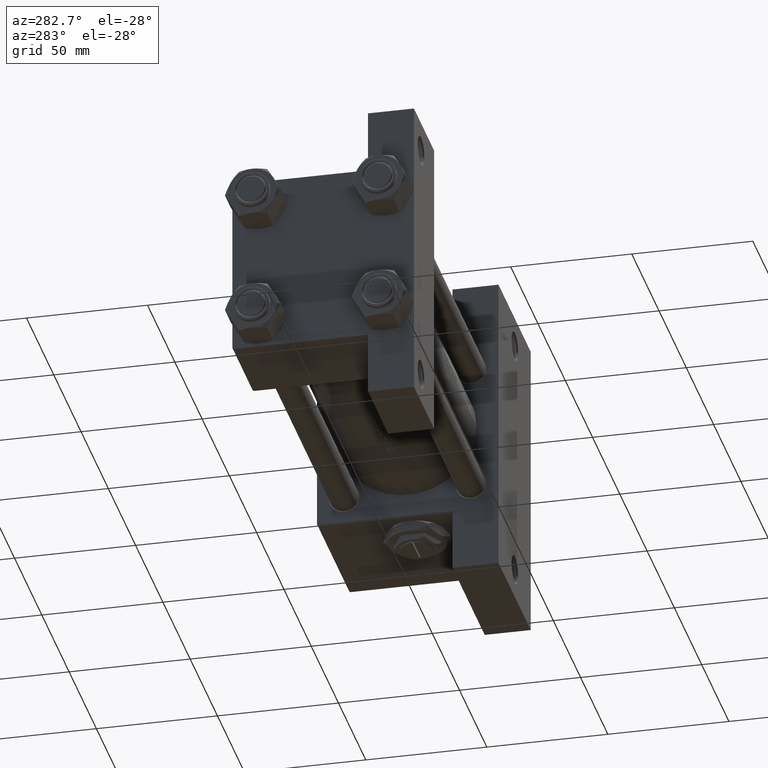
[diagram: clean part render]
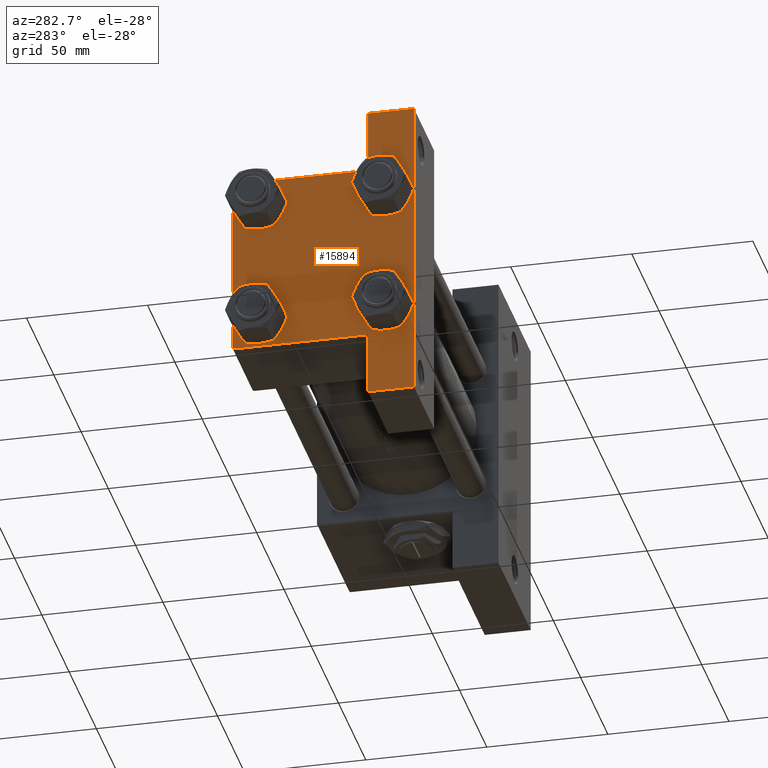
[diagram: same view with one face highlighted and labeled with its STEP entity id]
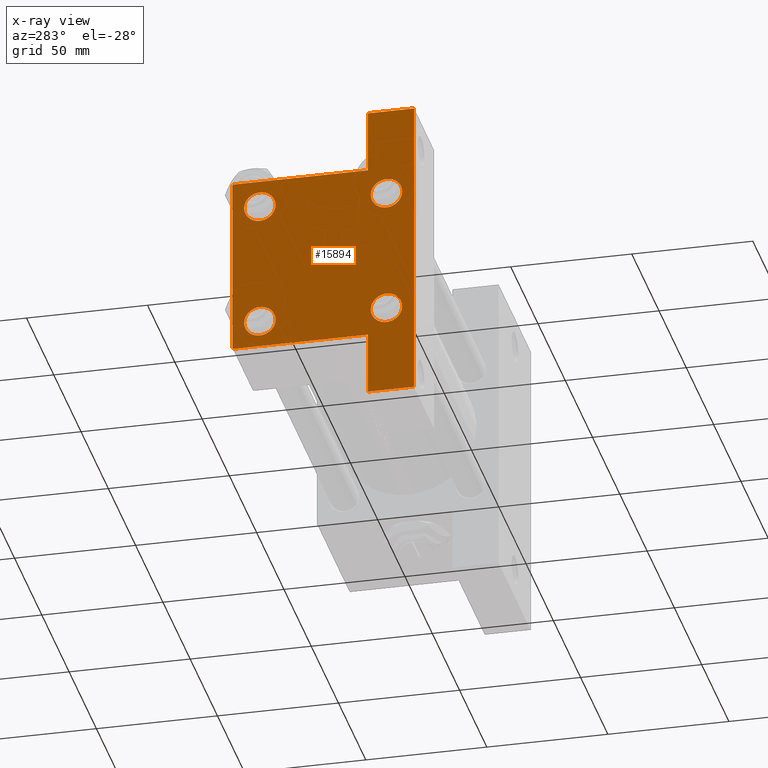
[diagram: x-ray of the same camera — body ghosted, the highlighted face saturated]
A machine part, auxiliary view. The second image highlights one B-rep face of the part: STEP entity #15894.
The next image is the same camera in x-ray: the body ghosted, the highlighted face saturated — about 0% of this face is hidden behind the body in this view.
In plain terms, the highlighted planar face has unit normal (-1, 0, -0).
Its self-contained STEP definition (entity closure, byte-faithful):
#193 = VERTEX_POINT ( 'NONE', #14240 ) ;
#214 = CARTESIAN_POINT ( 'NONE',  ( 0.000000000000000000, -37.50000000000000711, 36.99999999999999289 ) ) ;
#248 = VECTOR ( 'NONE', #31922, 1000.000000000000000 ) ;
#347 = DIRECTION ( 'NONE',  ( 0.000000000000000000, 0.000000000000000000, 1.000000000000000000 ) ) ;
#476 = EDGE_CURVE ( 'NONE', #31279, #31732, #49047, .T. ) ;
#539 = VERTEX_POINT ( 'NONE', #14925 ) ;
#548 = AXIS2_PLACEMENT_3D ( 'NONE', #40745, #32035, #5649 ) ;
#1045 = FACE_BOUND ( 'NONE', #20332, .T. ) ;
#2779 = CARTESIAN_POINT ( 'NONE',  ( 0.000000000000000000, 37.49999999999999289, -18.49999999999999645 ) ) ;
#2837 = VERTEX_POINT ( 'NONE', #16265 ) ;
#2944 = CARTESIAN_POINT ( 'NONE',  ( 0.000000000000000000, -26.14999999999999147, 19.64999999999999147 ) ) ;
#3617 = EDGE_CURVE ( 'NONE', #14021, #14409, #16313, .T. ) ;
#3875 = DIRECTION ( 'NONE',  ( 0.000000000000000000, 0.000000000000000000, 1.000000000000000000 ) ) ;
#4106 = EDGE_CURVE ( 'NONE', #29060, #16539, #44910, .T. ) ;
#4186 = CARTESIAN_POINT ( 'NONE',  ( 0.000000000000000000, 26.14999999999999858, -26.15000000000000213 ) ) ;
#5044 = CARTESIAN_POINT ( 'NONE',  ( 0.000000000000000000, -26.14999999999999147, 26.15000000000000924 ) ) ;
#5138 = VERTEX_POINT ( 'NONE', #32442 ) ;
#5265 = ORIENTED_EDGE ( 'NONE', *, *, #27419, .F. ) ;
#5649 = DIRECTION ( 'NONE',  ( 0.000000000000000000, 0.000000000000000000, 1.000000000000000000 ) ) ;
#5756 = VERTEX_POINT ( 'NONE', #44658 ) ;
#5995 = AXIS2_PLACEMENT_3D ( 'NONE', #4186, #35530, #15641 ) ;
#6016 = CARTESIAN_POINT ( 'NONE',  ( 0.000000000000000000, 37.49999999999999289, 37.50000000000000000 ) ) ;
#6065 = LINE ( 'NONE', #21261, #10408 ) ;
#6289 = AXIS2_PLACEMENT_3D ( 'NONE', #27672, #31415, #42884 ) ;
#6322 = LINE ( 'NONE', #17271, #42935 ) ;
#6528 = CARTESIAN_POINT ( 'NONE',  ( 0.000000000000000000, -26.14999999999999147, -19.64999999999999503 ) ) ;
#6799 = EDGE_CURVE ( 'NONE', #5756, #45358, #41122, .T. ) ;
#6928 = ORIENTED_EDGE ( 'NONE', *, *, #16622, .T. ) ;
#7713 = VERTEX_POINT ( 'NONE', #6528 ) ;
#7904 = CIRCLE ( 'NONE', #22230, 6.500000000000023093 ) ;
#8241 = CARTESIAN_POINT ( 'NONE',  ( 0.000000000000000000, -26.14999999999999147, -26.15000000000000924 ) ) ;
#8525 = FACE_BOUND ( 'NONE', #22915, .T. ) ;
#9020 = FACE_BOUND ( 'NONE', #12508, .T. ) ;
#9180 = ORIENTED_EDGE ( 'NONE', *, *, #35236, .F. ) ;
#9365 = ORIENTED_EDGE ( 'NONE', *, *, #27884, .T. ) ;
#9933 = CIRCLE ( 'NONE', #32990, 6.500000000000015987 ) ;
#10408 = VECTOR ( 'NONE', #36441, 1000.000000000000000 ) ;
#10592 = CARTESIAN_POINT ( 'NONE',  ( 0.000000000000000000, -26.14999999999999147, 26.15000000000000924 ) ) ;
#10862 = DIRECTION ( 'NONE',  ( 1.000000000000000000, -0.000000000000000000, 0.000000000000000000 ) ) ;
#11246 = DIRECTION ( 'NONE',  ( 0.000000000000000000, 0.000000000000000000, -1.000000000000000000 ) ) ;
#11248 = DIRECTION ( 'NONE',  ( 0.000000000000000000, 0.000000000000000000, 1.000000000000000000 ) ) ;
#11333 = ORIENTED_EDGE ( 'NONE', *, *, #37858, .T. ) ;
#11480 = DIRECTION ( 'NONE',  ( 1.000000000000000000, -0.000000000000000000, 0.000000000000000000 ) ) ;
#11598 = CARTESIAN_POINT ( 'NONE',  ( 0.000000000000000000, 26.14999999999999858, -26.15000000000000213 ) ) ;
#11613 = VECTOR ( 'NONE', #25956, 1000.000000000000000 ) ;
#12104 = CARTESIAN_POINT ( 'NONE',  ( 1.595073532467135441E-14, 63.50000000000000000, -18.50000000000000355 ) ) ;
#12113 = DIRECTION ( 'NONE',  ( -0.000000000000000000, 0.7071067811865474617, 0.7071067811865474617 ) ) ;
#12358 = LINE ( 'NONE', #31029, #14575 ) ;
#12508 = EDGE_LOOP ( 'NONE', ( #19743, #46599 ) ) ;
#12624 = CARTESIAN_POINT ( 'NONE',  ( 3.977209754999747208E-16, -63.49999999999998579, 26.72167621838007889 ) ) ;
#14021 = VERTEX_POINT ( 'NONE', #47892 ) ;
#14240 = CARTESIAN_POINT ( 'NONE',  ( 0.000000000000000000, 26.14999999999999858, -32.65000000000001990 ) ) ;
#14332 = DIRECTION ( 'NONE',  ( 0.000000000000000000, 0.000000000000000000, 1.000000000000000000 ) ) ;
#14395 = ORIENTED_EDGE ( 'NONE', *, *, #41620, .T. ) ;
#14409 = VERTEX_POINT ( 'NONE', #2944 ) ;
#14575 = VECTOR ( 'NONE', #12113, 1000.000000000000114 ) ;
#14854 = VERTEX_POINT ( 'NONE', #47655 ) ;
#14925 = CARTESIAN_POINT ( 'NONE',  ( 1.595073532467135441E-14, 63.50000000000000000, -37.50000000000002132 ) ) ;
#15459 = DIRECTION ( 'NONE',  ( 0.000000000000000000, -1.734723475976806848E-16, -1.000000000000000000 ) ) ;
#15641 = DIRECTION ( 'NONE',  ( 0.000000000000000000, 0.000000000000000000, 1.000000000000000000 ) ) ;
#15871 = ORIENTED_EDGE ( 'NONE', *, *, #48387, .T. ) ;
#15894 = ADVANCED_FACE ( 'NONE', ( #35149, #9020, #8525, #1045, #23709 ), #19971, .T. ) ;
#16265 = CARTESIAN_POINT ( 'NONE',  ( 0.000000000000000000, -26.14999999999999147, -32.65000000000002700 ) ) ;
#16313 = CIRCLE ( 'NONE', #34620, 6.500000000000023093 ) ;
#16539 = VERTEX_POINT ( 'NONE', #2779 ) ;
#16622 = EDGE_CURVE ( 'NONE', #45358, #5756, #7904, .T. ) ;
#16721 = VECTOR ( 'NONE', #15459, 1000.000000000000000 ) ;
#16833 = DIRECTION ( 'NONE',  ( 0.000000000000000000, 0.7071067811865474617, -0.7071067811865474617 ) ) ;
#16945 = EDGE_LOOP ( 'NONE', ( #23138, #45230 ) ) ;
#16948 = VERTEX_POINT ( 'NONE', #214 ) ;
#17015 = EDGE_CURVE ( 'NONE', #193, #23029, #29153, .T. ) ;
#17271 = CARTESIAN_POINT ( 'NONE',  ( 3.977209754999744250E-16, -63.49999999999998579, -18.50000000000000355 ) ) ;
#17717 = CARTESIAN_POINT ( 'NONE',  ( 0.000000000000000000, 37.49999999999999289, -37.50000000000000000 ) ) ;
#18312 = CIRCLE ( 'NONE', #21456, 6.500000000000015987 ) ;
#19599 = ORIENTED_EDGE ( 'NONE', *, *, #27659, .T. ) ;
#19743 = ORIENTED_EDGE ( 'NONE', *, *, #44356, .T. ) ;
#19971 = PLANE ( 'NONE',  #6289 ) ;
#20332 = EDGE_LOOP ( 'NONE', ( #6928, #44845 ) ) ;
#20484 = LINE ( 'NONE', #17717, #248 ) ;
#20678 = VECTOR ( 'NONE', #11246, 1000.000000000000000 ) ;
#21261 = CARTESIAN_POINT ( 'NONE',  ( 0.000000000000000000, -37.50000000000000711, 37.49999999999999289 ) ) ;
#21456 = AXIS2_PLACEMENT_3D ( 'NONE', #8241, #23422, #11248 ) ;
#21895 = DIRECTION ( 'NONE',  ( 0.000000000000000000, 0.000000000000000000, 1.000000000000000000 ) ) ;
#22230 = AXIS2_PLACEMENT_3D ( 'NONE', #37630, #11480, #33387 ) ;
#22251 = CARTESIAN_POINT ( 'NONE',  ( 0.000000000000000000, 26.14999999999999858, -19.64999999999998792 ) ) ;
#22636 = DIRECTION ( 'NONE',  ( 0.000000000000000000, -1.000000000000000000, -9.251858538542971581E-17 ) ) ;
#22779 = EDGE_CURVE ( 'NONE', #23029, #193, #48353, .T. ) ;
#22887 = CARTESIAN_POINT ( 'NONE',  ( 0.000000000000000000, -37.00000000000000711, 37.49999999999999289 ) ) ;
#22915 = EDGE_LOOP ( 'NONE', ( #42811, #44335 ) ) ;
#23029 = VERTEX_POINT ( 'NONE', #22251 ) ;
#23138 = ORIENTED_EDGE ( 'NONE', *, *, #3617, .T. ) ;
#23338 = DIRECTION ( 'NONE',  ( 0.000000000000000000, -1.734723475976806848E-16, -1.000000000000000000 ) ) ;
#23422 = DIRECTION ( 'NONE',  ( 1.000000000000000000, -0.000000000000000000, 0.000000000000000000 ) ) ;
#23500 = VERTEX_POINT ( 'NONE', #37512 ) ;
#23709 = FACE_OUTER_BOUND ( 'NONE', #46927, .T. ) ;
#23965 = DIRECTION ( 'NONE',  ( 1.000000000000000000, -0.000000000000000000, 0.000000000000000000 ) ) ;
#24067 = CARTESIAN_POINT ( 'NONE',  ( 0.000000000000000000, 37.24999999999999289, 37.24999999999999289 ) ) ;
#25618 = CARTESIAN_POINT ( 'NONE',  ( 0.000000000000000000, 26.14999999999999858, 32.65000000000002700 ) ) ;
#25956 = DIRECTION ( 'NONE',  ( -2.877097866686192789E-16, -1.000000000000000000, 0.000000000000000000 ) ) ;
#26687 = CARTESIAN_POINT ( 'NONE',  ( 1.595073532467135757E-14, 63.50000000000001421, -18.50000000000000355 ) ) ;
#26856 = AXIS2_PLACEMENT_3D ( 'NONE', #11598, #10862, #3875 ) ;
#27419 = EDGE_CURVE ( 'NONE', #23500, #14854, #6322, .T. ) ;
#27538 = LINE ( 'NONE', #12624, #31896 ) ;
#27542 = LINE ( 'NONE', #24067, #45685 ) ;
#27659 = EDGE_CURVE ( 'NONE', #5138, #16539, #28412, .T. ) ;
#27672 = CARTESIAN_POINT ( 'NONE',  ( 0.000000000000000000, 0.000000000000000000, 0.000000000000000000 ) ) ;
#27884 = EDGE_CURVE ( 'NONE', #29060, #539, #35102, .T. ) ;
#28006 = ORIENTED_EDGE ( 'NONE', *, *, #4106, .F. ) ;
#28412 = LINE ( 'NONE', #6016, #20678 ) ;
#28471 = DIRECTION ( 'NONE',  ( 4.278042683914906889E-17, -1.000000000000000000, 0.000000000000000000 ) ) ;
#29060 = VERTEX_POINT ( 'NONE', #12104 ) ;
#29153 = CIRCLE ( 'NONE', #5995, 6.500000000000015987 ) ;
#31029 = CARTESIAN_POINT ( 'NONE',  ( -0.000000000000000000, -37.25000000000000000, 37.25000000000000000 ) ) ;
#31279 = VERTEX_POINT ( 'NONE', #41931 ) ;
#31415 = DIRECTION ( 'NONE',  ( -1.000000000000000000, 0.000000000000000000, -0.000000000000000000 ) ) ;
#31545 = EDGE_CURVE ( 'NONE', #2837, #7713, #18312, .T. ) ;
#31732 = VERTEX_POINT ( 'NONE', #22887 ) ;
#31896 = VECTOR ( 'NONE', #23338, 1000.000000000000000 ) ;
#31922 = DIRECTION ( 'NONE',  ( 0.000000000000000000, -1.000000000000000000, -9.251858538542972814E-17 ) ) ;
#32035 = DIRECTION ( 'NONE',  ( 1.000000000000000000, -0.000000000000000000, 0.000000000000000000 ) ) ;
#32442 = CARTESIAN_POINT ( 'NONE',  ( 0.000000000000000000, 37.49999999999999289, 37.00000000000000000 ) ) ;
#32990 = AXIS2_PLACEMENT_3D ( 'NONE', #36326, #36827, #21895 ) ;
#33387 = DIRECTION ( 'NONE',  ( 0.000000000000000000, 0.000000000000000000, 1.000000000000000000 ) ) ;
#33637 = EDGE_CURVE ( 'NONE', #16948, #23500, #6065, .T. ) ;
#34321 = CARTESIAN_POINT ( 'NONE',  ( 0.000000000000000000, 37.49999999999999289, 37.50000000000000000 ) ) ;
#34620 = AXIS2_PLACEMENT_3D ( 'NONE', #10592, #48453, #14332 ) ;
#35102 = LINE ( 'NONE', #38849, #16721 ) ;
#35149 = FACE_BOUND ( 'NONE', #16945, .T. ) ;
#35236 = EDGE_CURVE ( 'NONE', #14854, #42439, #27538, .T. ) ;
#35530 = DIRECTION ( 'NONE',  ( 1.000000000000000000, -0.000000000000000000, 0.000000000000000000 ) ) ;
#36326 = CARTESIAN_POINT ( 'NONE',  ( 0.000000000000000000, -26.14999999999999147, -26.15000000000000924 ) ) ;
#36441 = DIRECTION ( 'NONE',  ( 0.000000000000000000, 9.251858538542971581E-17, -1.000000000000000000 ) ) ;
#36827 = DIRECTION ( 'NONE',  ( 1.000000000000000000, -0.000000000000000000, 0.000000000000000000 ) ) ;
#37444 = ORIENTED_EDGE ( 'NONE', *, *, #33637, .F. ) ;
#37512 = CARTESIAN_POINT ( 'NONE',  ( -7.145701223179004046E-16, -37.50000000000000711, -18.50000000000000355 ) ) ;
#37630 = CARTESIAN_POINT ( 'NONE',  ( 0.000000000000000000, 26.14999999999999858, 26.15000000000000213 ) ) ;
#37858 = EDGE_CURVE ( 'NONE', #539, #42439, #20484, .T. ) ;
#38849 = CARTESIAN_POINT ( 'NONE',  ( 1.595073532467135441E-14, 63.50000000000001421, 26.72167621838005047 ) ) ;
#40718 = CIRCLE ( 'NONE', #43097, 6.500000000000023093 ) ;
#40745 = CARTESIAN_POINT ( 'NONE',  ( 0.000000000000000000, 26.14999999999999858, 26.15000000000000213 ) ) ;
#41122 = CIRCLE ( 'NONE', #548, 6.500000000000023093 ) ;
#41620 = EDGE_CURVE ( 'NONE', #31279, #5138, #27542, .T. ) ;
#41931 = CARTESIAN_POINT ( 'NONE',  ( 0.000000000000000000, 36.99999999999999289, 37.50000000000000000 ) ) ;
#42439 = VERTEX_POINT ( 'NONE', #43499 ) ;
#42811 = ORIENTED_EDGE ( 'NONE', *, *, #22779, .T. ) ;
#42884 = DIRECTION ( 'NONE',  ( -0.000000000000000000, 0.000000000000000000, 1.000000000000000000 ) ) ;
#42935 = VECTOR ( 'NONE', #28471, 1000.000000000000000 ) ;
#43097 = AXIS2_PLACEMENT_3D ( 'NONE', #5044, #23965, #347 ) ;
#43499 = CARTESIAN_POINT ( 'NONE',  ( 3.977209754999747208E-16, -63.50000000000000000, -37.49999999999999289 ) ) ;
#44335 = ORIENTED_EDGE ( 'NONE', *, *, #17015, .T. ) ;
#44356 = EDGE_CURVE ( 'NONE', #7713, #2837, #9933, .T. ) ;
#44658 = CARTESIAN_POINT ( 'NONE',  ( 0.000000000000000000, 26.14999999999999858, 19.64999999999998437 ) ) ;
#44845 = ORIENTED_EDGE ( 'NONE', *, *, #6799, .T. ) ;
#44910 = LINE ( 'NONE', #26687, #11613 ) ;
#45230 = ORIENTED_EDGE ( 'NONE', *, *, #49101, .T. ) ;
#45358 = VERTEX_POINT ( 'NONE', #25618 ) ;
#45685 = VECTOR ( 'NONE', #16833, 1000.000000000000114 ) ;
#46599 = ORIENTED_EDGE ( 'NONE', *, *, #31545, .T. ) ;
#46717 = ORIENTED_EDGE ( 'NONE', *, *, #476, .F. ) ;
#46927 = EDGE_LOOP ( 'NONE', ( #37444, #15871, #46717, #14395, #19599, #28006, #9365, #11333, #9180, #5265 ) ) ;
#47655 = CARTESIAN_POINT ( 'NONE',  ( 3.977209754999747208E-16, -63.50000000000000000, -18.50000000000000355 ) ) ;
#47892 = CARTESIAN_POINT ( 'NONE',  ( 0.000000000000000000, -26.14999999999999147, 32.65000000000003411 ) ) ;
#48043 = VECTOR ( 'NONE', #22636, 1000.000000000000000 ) ;
#48353 = CIRCLE ( 'NONE', #26856, 6.500000000000015987 ) ;
#48387 = EDGE_CURVE ( 'NONE', #16948, #31732, #12358, .T. ) ;
#48453 = DIRECTION ( 'NONE',  ( 1.000000000000000000, -0.000000000000000000, 0.000000000000000000 ) ) ;
#49047 = LINE ( 'NONE', #34321, #48043 ) ;
#49101 = EDGE_CURVE ( 'NONE', #14409, #14021, #40718, .T. ) ;